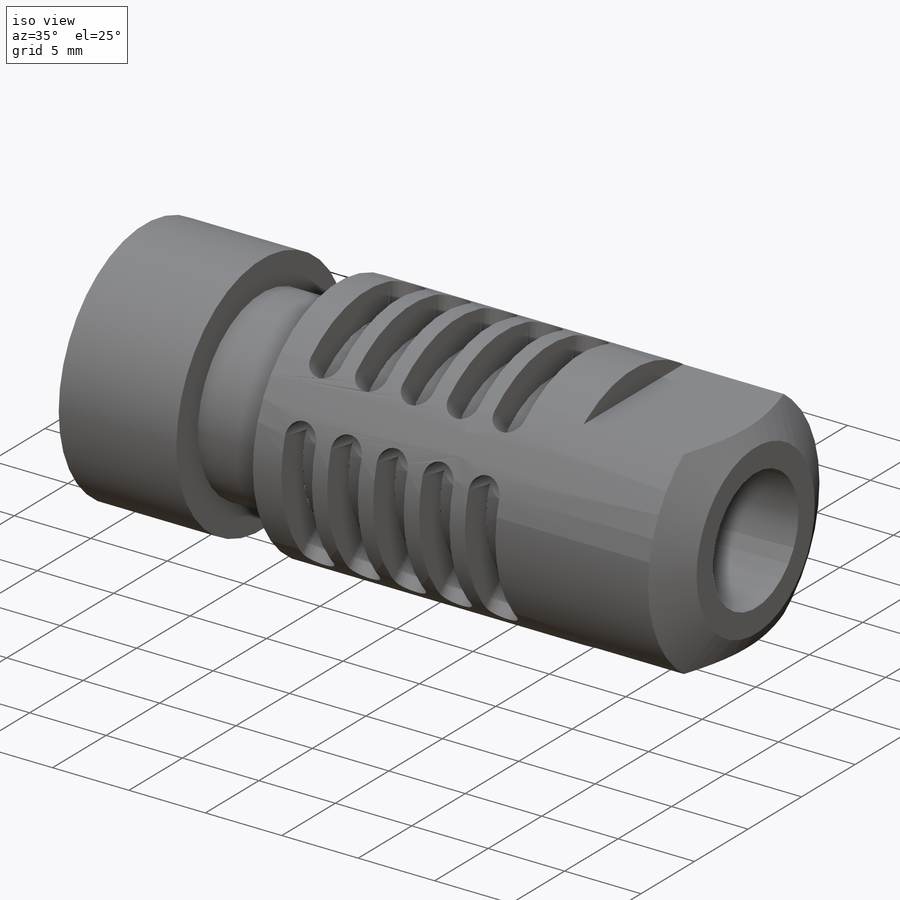
[diagram: iso view]
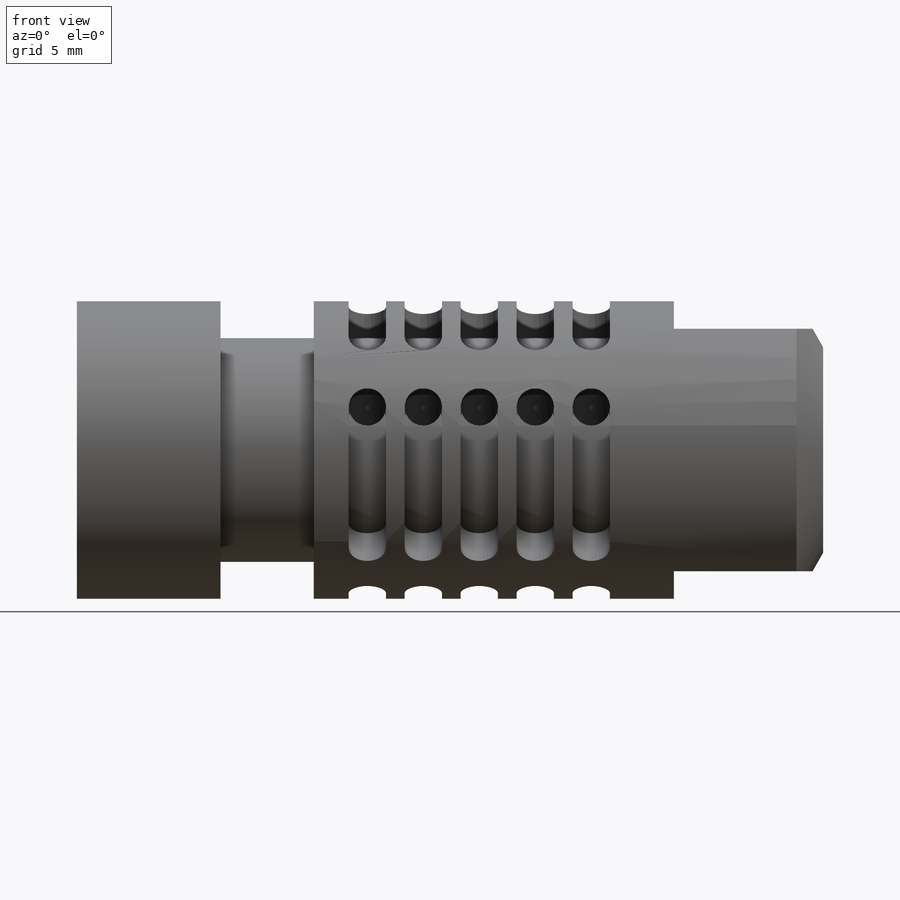
[diagram: front view]
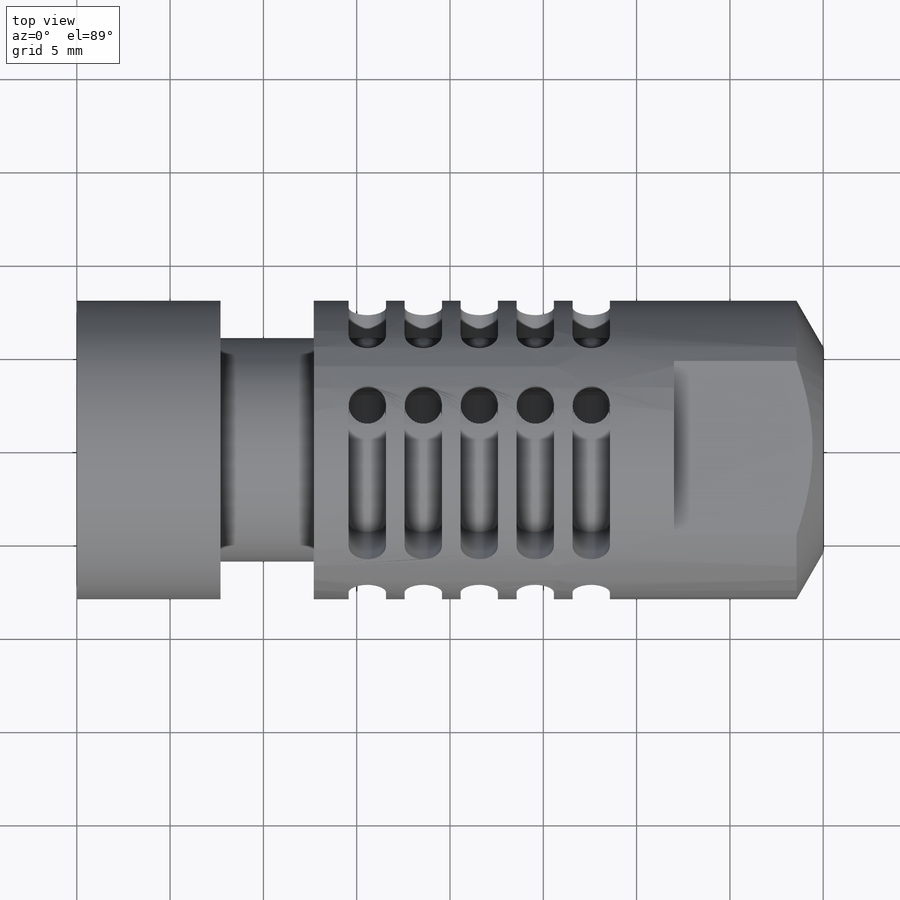
[diagram: top view]
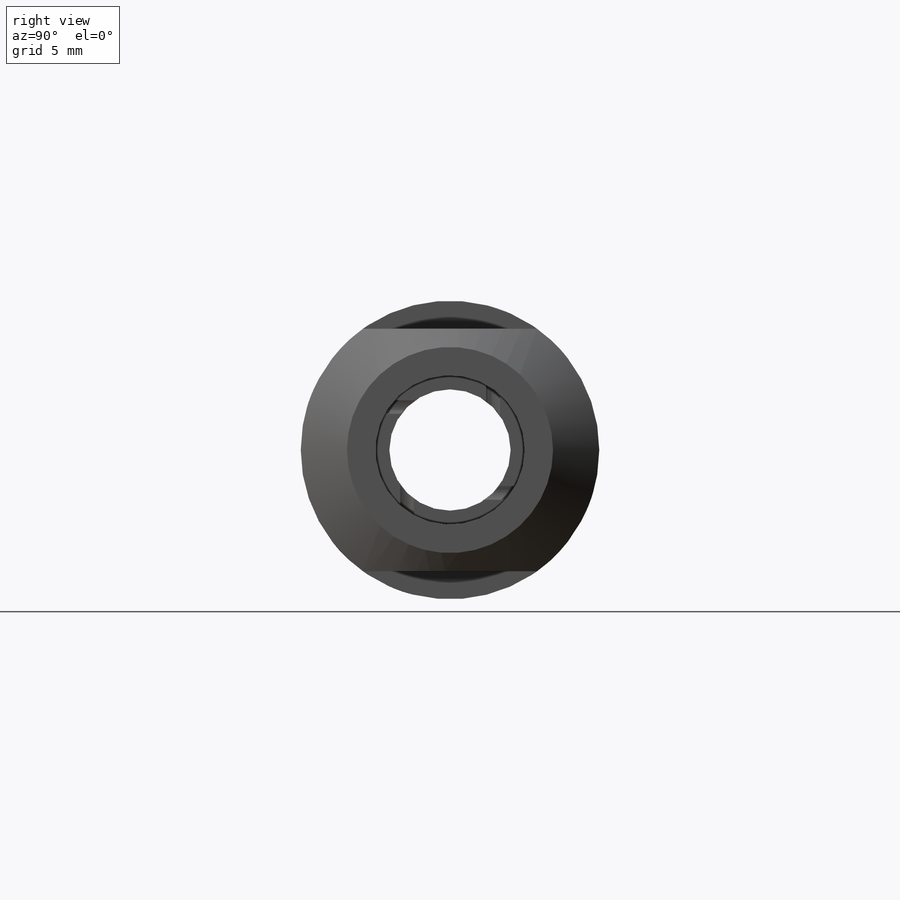
[diagram: right view]
SOLIDWORKS PART (.sldprt)
format: sldprt  version: not decoded by parser v0  size: 719,872 bytes
history: native  units: mm
features: plane x5, sketch x4, cut_extrude x2, pattern_linear x2, material x1, revolve x1, pattern_circular x1 (+9 scaffold rows collapsed)
feature tree (25):
  scaffold x9  (default folders/planes/origin — collapsed)
  material  "Matériau <non spécifié>"
  plane  "Plan de face"
  plane  "Plan de dessus"
  plane  "Plan de droite"
  sketch  "Esquisse1"  dims[c1.D1=40.0mm c1.D2=4.0mm c1.D3=11.5mm c1.D4=4.0mm c1.D5=6.0mm c1.D6=8.0mm c1.D7=~1.894325mm c2.D7=30.0deg c2.D8=3.25mm c2.D9=7.5mm c2.D10=5.0mm c2.D11=4.6mm]
  revolve  "Révolution1"  Angle=360deg
  sketch  "Esquisse2"  dims[c1.D1=6.481mm c1.D2=~18.095826mm c2.D1=~4.951775mm c2.D2=~17.804545mm c3.D1=13.0mm c3.D2=6.5mm c3.D3=8.0mm]
  cut_extrude  "Enlèv. mat.-Extru.1"  Depth=50mm
  plane  "Plan1"  Offset=8mm
  plane  "Plan2"  Offset=8mm
  sketch  "Esquisse5"  dims[c1.D1=~1.962101mm c1.D2=1.0mm c1.D3=1.0mm c2.D1=~7.703094mm c2.D2=~1.962101mm c3.D1=2.0mm c3.D3=8.0mm c3.D5=~2.296193mm c3.D4=5.0 c4.D1=2.0mm]
  pattern_circular  "Répétition circulaire3"  Count=4 Angle=360deg
  sketch  "Esquisse3"  dims[D1=2.0mm D2=11.0mm D3=2.3mm]
  cut_extrude  "Enlèv. mat.-Extru.2"  Depth=8mm
  pattern_linear  "Répétition linéaire1"  Count1=5 Count2=1 Spacing1=3mm Spacing2=10mm
  pattern_linear  "Répétition circulaire1"  Count1=4  [1 undecoded]
decode coverage: 10 of 10 modeling features carry decoded parameters
note: ~ marks probable driven/reference dimensions
note: 1 parameter value undecoded
note: suppression state not decoded; provenance and decode notes live in map.json
